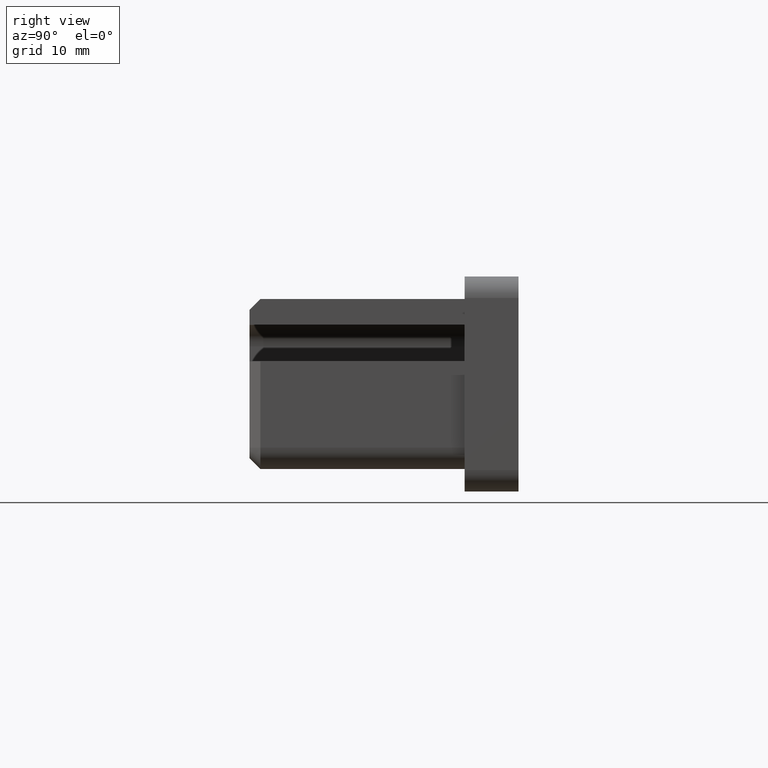
[diagram: clean part render]
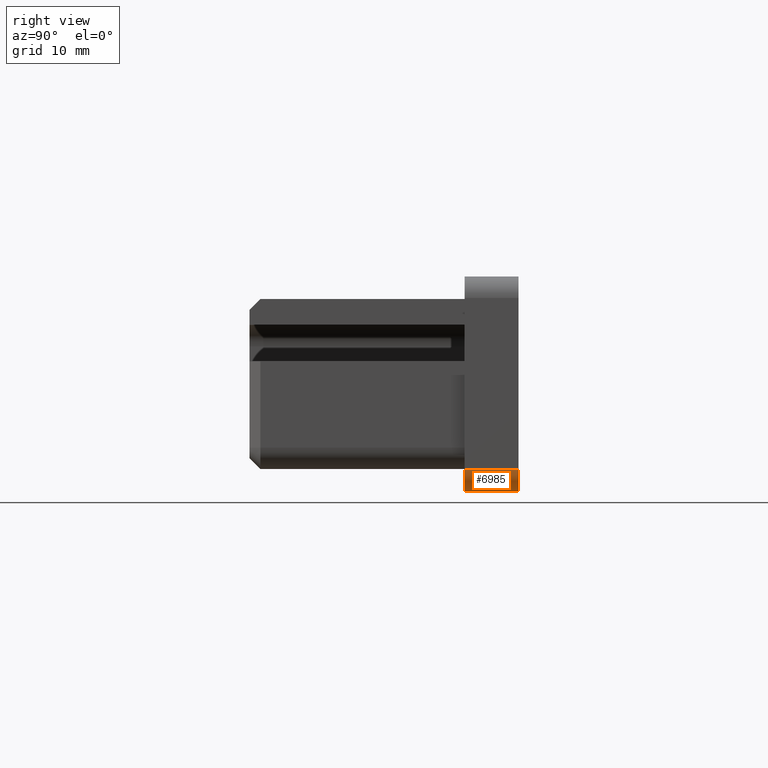
[diagram: same view with one face highlighted and labeled with its STEP entity id]
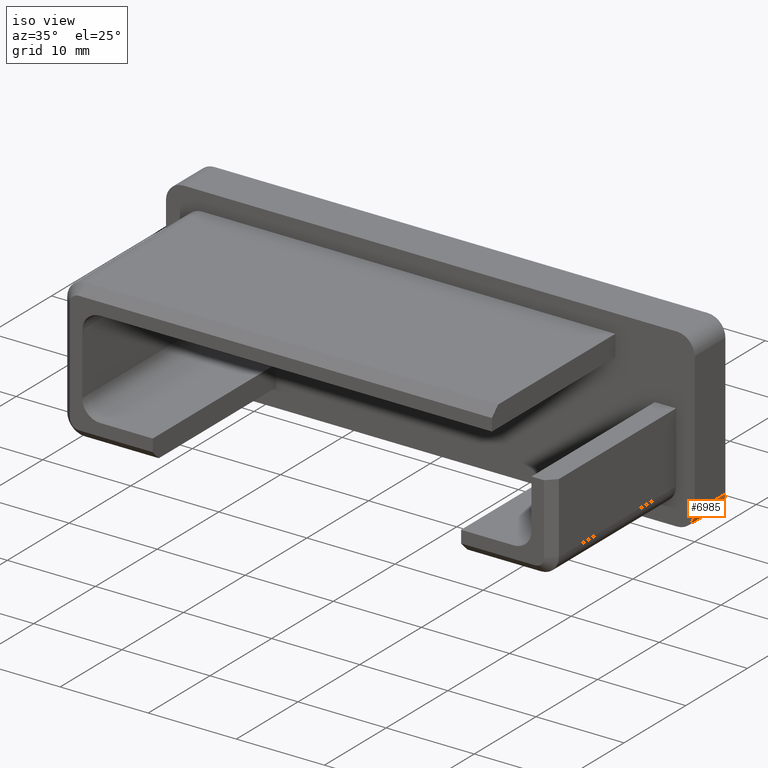
[diagram: same view with one face highlighted and labeled with its STEP entity id]
A machine part, right view. The second image highlights one B-rep face of the part: STEP entity #6985.
A second angle (iso view) of the same face is appended — the face is thin or edge-on in the first view.
In plain terms, the highlighted cylindrical surface (edge-blend (fillet) strip) has radius 2 mm, axis along (0, -1, 0).
Its self-contained STEP definition (entity closure, byte-faithful):
#246 = DIRECTION ( 'NONE',  ( -0.000000000000000000, 1.000000000000000000, -0.000000000000000000 ) ) ;
#710 = CARTESIAN_POINT ( 'NONE',  ( 28.00000000000000000, 5.000000000000000000, -8.000000000000000000 ) ) ;
#1203 = ORIENTED_EDGE ( 'NONE', *, *, #7491, .F. ) ;
#1278 = CARTESIAN_POINT ( 'NONE',  ( 30.00000000000000711, 0.000000000000000000, -8.000000000000000000 ) ) ;
#1796 = DIRECTION ( 'NONE',  ( 0.000000000000000000, 0.000000000000000000, 1.000000000000000000 ) ) ;
#1828 = VERTEX_POINT ( 'NONE', #5072 ) ;
#2023 = VERTEX_POINT ( 'NONE', #7287 ) ;
#2030 = VERTEX_POINT ( 'NONE', #1278 ) ;
#2295 = EDGE_CURVE ( 'NONE', #14025, #2023, #11013, .T. ) ;
#2555 = ORIENTED_EDGE ( 'NONE', *, *, #5569, .F. ) ;
#4270 = CARTESIAN_POINT ( 'NONE',  ( 28.00000000000000000, 5.000000000000000000, -10.00000000000000000 ) ) ;
#4292 = ORIENTED_EDGE ( 'NONE', *, *, #2295, .F. ) ;
#5072 = CARTESIAN_POINT ( 'NONE',  ( 30.00000000000000711, 5.000000000000000000, -8.000000000000000000 ) ) ;
#5270 = CARTESIAN_POINT ( 'NONE',  ( 28.00000000000000000, 5.000000000000000000, -10.00000000000000000 ) ) ;
#5497 = DIRECTION ( 'NONE',  ( 0.000000000000000000, 1.000000000000000000, 0.000000000000000000 ) ) ;
#5569 = EDGE_CURVE ( 'NONE', #1828, #14025, #9657, .T. ) ;
#5822 = AXIS2_PLACEMENT_3D ( 'NONE', #10403, #10301, #13832 ) ;
#6181 = EDGE_CURVE ( 'NONE', #2030, #1828, #9470, .T. ) ;
#6385 = VECTOR ( 'NONE', #12391, 1000.000000000000000 ) ;
#6549 = DIRECTION ( 'NONE',  ( 0.000000000000000000, 0.000000000000000000, -1.000000000000000000 ) ) ;
#6985 = ADVANCED_FACE ( 'NONE', ( #11874 ), #12418, .T. ) ;
#7287 = CARTESIAN_POINT ( 'NONE',  ( 28.00000000000000000, 0.000000000000000000, -10.00000000000000000 ) ) ;
#7491 = EDGE_CURVE ( 'NONE', #2023, #2030, #13716, .T. ) ;
#7624 = AXIS2_PLACEMENT_3D ( 'NONE', #11092, #12139, #6549 ) ;
#8023 = EDGE_LOOP ( 'NONE', ( #2555, #13806, #1203, #4292 ) ) ;
#9470 = LINE ( 'NONE', #14626, #14109 ) ;
#9657 = CIRCLE ( 'NONE', #11501, 2.000000000000000000 ) ;
#10301 = DIRECTION ( 'NONE',  ( -0.000000000000000000, -1.000000000000000000, -0.000000000000000000 ) ) ;
#10403 = CARTESIAN_POINT ( 'NONE',  ( 28.00000000000000000, 0.000000000000000000, -8.000000000000000000 ) ) ;
#11013 = LINE ( 'NONE', #5270, #6385 ) ;
#11092 = CARTESIAN_POINT ( 'NONE',  ( 28.00000000000000000, 5.000000000000000000, -8.000000000000000000 ) ) ;
#11501 = AXIS2_PLACEMENT_3D ( 'NONE', #710, #5497, #1796 ) ;
#11874 = FACE_OUTER_BOUND ( 'NONE', #8023, .T. ) ;
#12139 = DIRECTION ( 'NONE',  ( 0.000000000000000000, -1.000000000000000000, 0.000000000000000000 ) ) ;
#12391 = DIRECTION ( 'NONE',  ( 0.000000000000000000, -1.000000000000000000, 0.000000000000000000 ) ) ;
#12418 = CYLINDRICAL_SURFACE ( 'NONE', #7624, 2.000000000000000000 ) ;
#13716 = CIRCLE ( 'NONE', #5822, 2.000000000000000000 ) ;
#13806 = ORIENTED_EDGE ( 'NONE', *, *, #6181, .F. ) ;
#13832 = DIRECTION ( 'NONE',  ( 0.000000000000000000, 0.000000000000000000, 1.000000000000000000 ) ) ;
#14025 = VERTEX_POINT ( 'NONE', #4270 ) ;
#14109 = VECTOR ( 'NONE', #246, 1000.000000000000000 ) ;
#14626 = CARTESIAN_POINT ( 'NONE',  ( 30.00000000000000711, 5.000000000000000000, -8.000000000000000000 ) ) ;